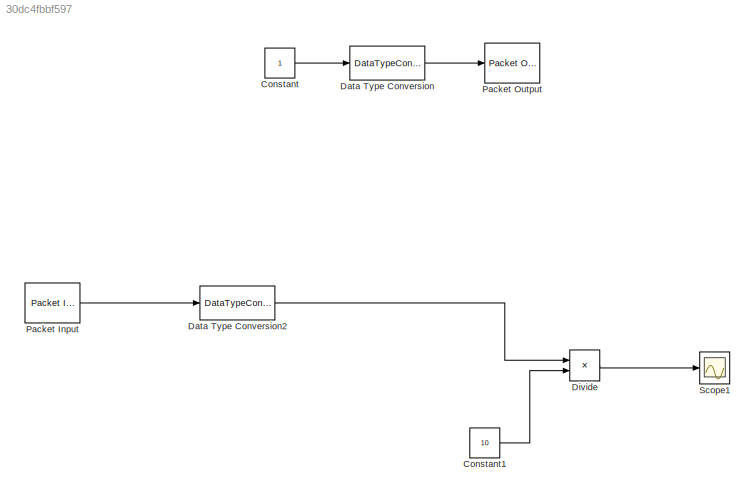
MODEL slx_30dc4fbbf597
KIND model
CONFIG AbsTol = auto
CONFIG EnableMultiTasking = on
CONFIG FixedStep = 0.1
CONFIG MaxStep = auto
CONFIG MinStep = auto
CONFIG RelTol = 1e-3
CONFIG SampleTimeConstraint = Unconstrained
CONFIG Solver = FixedStepAuto
CONFIG SolverName = FixedStepAuto
CONFIG StartTime = 0.0
CONFIG StopTime = 15
BLOCK [Constant] Constant
BLOCK [Constant] Constant1
  Value = 10
BLOCK [DataTypeConversion] Data Type Conversion
  OutDataTypeStr = uint8
  RndMeth = Floor
  SaturateOnIntegerOverflow = off
BLOCK [DataTypeConversion] Data Type Conversion2
  OutDataTypeStr = double
  RndMeth = Floor
  SaturateOnIntegerOverflow = off
BLOCK [Product] Divide
  InputSameDT = off
  Inputs = */
  OutDataTypeStr = Inherit: Inherit via internal rule
  Ports = [2, 1]
  RndMeth = Floor
  SaturateOnIntegerOverflow = off
BLOCK [Reference] Packet Input  REF=sldrtlib/Packet Input
  AttributesFormatString = Standard Devices\nUDP Protocol [FACh]
  Ports = [0, 1]
  SourceBlock = sldrtlib/Packet Input
  SourceType = Simulink Desktop Real-Time Packet Input
BLOCK [Reference] Packet Output  REF=sldrtlib/Packet Output
  AttributesFormatString = Standard Devices\nUDP Protocol [FACh]
  Ports = [1]
  SourceBlock = sldrtlib/Packet Output
  SourceType = Simulink Desktop Real-Time Packet Output
BLOCK [Scope] Scope1
  NumInputPorts = 1
  Ports = [1]
  ScopeSpecificationString = Simulink.scopes.TimeScopeBlockCfg('CurrentConfiguration', extmgr.ConfigurationSet(extmgr.Configuration('Core','General UI',true),extmgr.Configuration('Core','Source UI',true),extmgr.Configuration('Sources','WiredSimulink',true,'DataLoggingVariableName','ScopeData1'),extmgr.Configuration('Visuals','Time Domain',true,'SerializedDisplays',{struct('MinYLimReal','-83.55','MaxYLimReal','101.95','YLabelR...<+1481ch>
LINE Constant1:1 -> Divide:2
LINE Constant:1 -> Data Type Conversion:1
LINE Data Type Conversion2:1 -> Divide:1
LINE Data Type Conversion:1 -> Packet Output:1
LINE Divide:1 -> Scope1:1
LINE Packet Input:1 -> Data Type Conversion2:1
